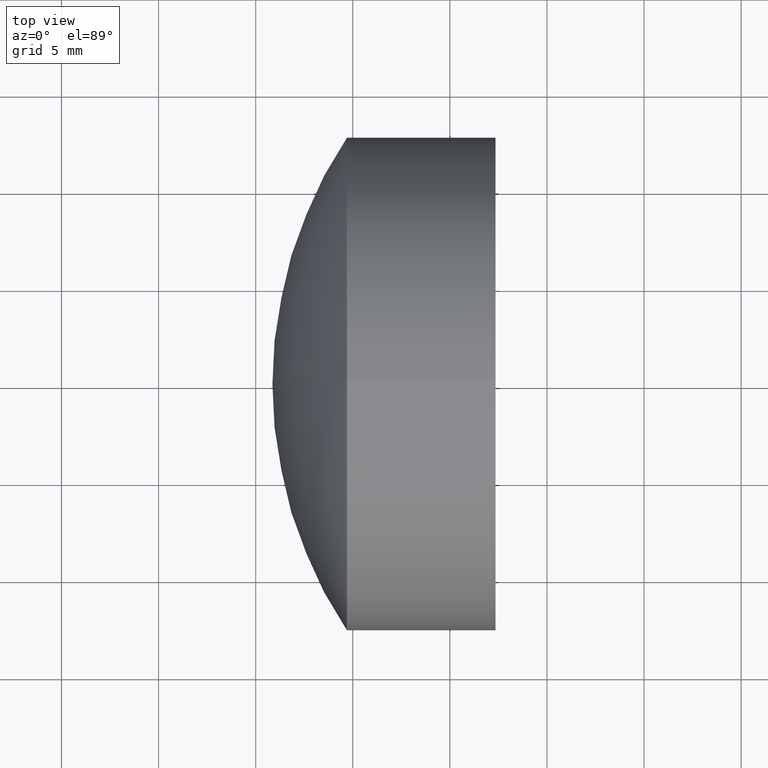
[diagram: clean part render]
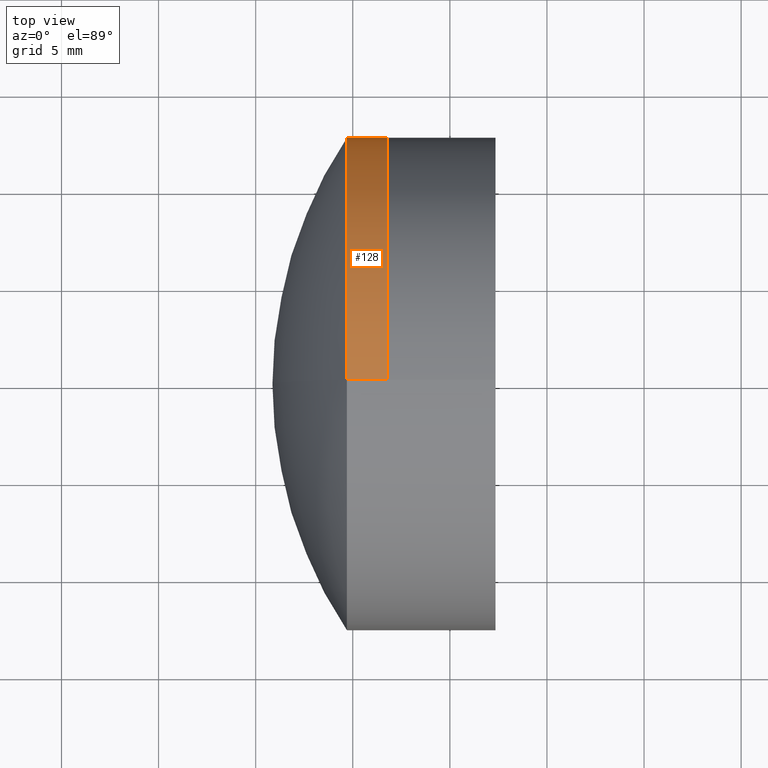
[diagram: same view with one face highlighted and labeled with its STEP entity id]
A machine part, top view. The second image highlights one B-rep face of the part: STEP entity #128.
In plain terms, the highlighted cylindrical surface (partial cylindrical patch) has radius 12.7 mm, axis along (-1, -0, -0).
Its self-contained STEP definition (entity closure, byte-faithful):
#2 = DIRECTION ( 'NONE',  ( -1.000000000000000000, -0.0000000000000000000, -0.0000000000000000000 ) ) ;
#9 = CARTESIAN_POINT ( 'NONE',  ( 36.76664125472041200, 1.555301434917138400E-015, -12.69999999999999900 ) ) ;
#20 = VERTEX_POINT ( 'NONE', #9 ) ;
#35 = CARTESIAN_POINT ( 'NONE',  ( 36.76664125472041200, 0.0000000000000000000, 0.0000000000000000000 ) ) ;
#36 = FACE_OUTER_BOUND ( 'NONE', #38, .T. ) ;
#38 = EDGE_LOOP ( 'NONE', ( #96, #147, #52, #42 ) ) ;
#42 = ORIENTED_EDGE ( 'NONE', *, *, #51, .F. ) ;
#50 = CARTESIAN_POINT ( 'NONE',  ( 34.70027742184829100, 0.0000000000000000000, 12.69999999999997600 ) ) ;
#51 = EDGE_CURVE ( 'NONE', #292, #316, #347, .T. ) ;
#52 = ORIENTED_EDGE ( 'NONE', *, *, #76, .F. ) ;
#63 = CARTESIAN_POINT ( 'NONE',  ( 34.70027742184828400, 0.0000000000000000000, 0.0000000000000000000 ) ) ;
#65 = DIRECTION ( 'NONE',  ( 0.0000000000000000000, 0.0000000000000000000, 1.000000000000000000 ) ) ;
#76 = EDGE_CURVE ( 'NONE', #316, #196, #284, .T. ) ;
#86 = EDGE_CURVE ( 'NONE', #20, #196, #161, .T. ) ;
#91 = CARTESIAN_POINT ( 'NONE',  ( -0.8160621761658039000, 0.0000000000000000000, 12.69999999999999900 ) ) ;
#96 = ORIENTED_EDGE ( 'NONE', *, *, #105, .T. ) ;
#101 = VECTOR ( 'NONE', #127, 1000.000000000000000 ) ;
#105 = EDGE_CURVE ( 'NONE', #292, #20, #253, .T. ) ;
#116 = CARTESIAN_POINT ( 'NONE',  ( 34.70027742184829100, 1.555301434917135900E-015, -12.69999999999997600 ) ) ;
#127 = DIRECTION ( 'NONE',  ( -1.000000000000000000, -0.0000000000000000000, -0.0000000000000000000 ) ) ;
#128 = ADVANCED_FACE ( 'NONE', ( #36 ), #320, .T. ) ;
#145 = DIRECTION ( 'NONE',  ( -1.000000000000000000, -0.0000000000000000000, -0.0000000000000000000 ) ) ;
#147 = ORIENTED_EDGE ( 'NONE', *, *, #86, .T. ) ;
#150 = DIRECTION ( 'NONE',  ( -1.000000000000000000, -0.0000000000000000000, -0.0000000000000000000 ) ) ;
#156 = AXIS2_PLACEMENT_3D ( 'NONE', #63, #145, #302 ) ;
#161 = LINE ( 'NONE', #223, #101 ) ;
#194 = DIRECTION ( 'NONE',  ( 0.0000000000000000000, 0.0000000000000000000, 1.000000000000000000 ) ) ;
#196 = VERTEX_POINT ( 'NONE', #116 ) ;
#223 = CARTESIAN_POINT ( 'NONE',  ( -0.8160621761658039000, 1.555301434917138400E-015, -12.69999999999999900 ) ) ;
#225 = AXIS2_PLACEMENT_3D ( 'NONE', #35, #2, #65 ) ;
#231 = CARTESIAN_POINT ( 'NONE',  ( 36.76664125472041200, 0.0000000000000000000, 12.69999999999999900 ) ) ;
#253 = CIRCLE ( 'NONE', #225, 12.69999999999999900 ) ;
#277 = CARTESIAN_POINT ( 'NONE',  ( -0.8160621761658039000, 0.0000000000000000000, 0.0000000000000000000 ) ) ;
#280 = VECTOR ( 'NONE', #150, 1000.000000000000000 ) ;
#284 = CIRCLE ( 'NONE', #156, 12.69999999999999900 ) ;
#292 = VERTEX_POINT ( 'NONE', #231 ) ;
#302 = DIRECTION ( 'NONE',  ( 0.0000000000000000000, 0.0000000000000000000, 1.000000000000000000 ) ) ;
#304 = AXIS2_PLACEMENT_3D ( 'NONE', #277, #308, #194 ) ;
#308 = DIRECTION ( 'NONE',  ( -1.000000000000000000, -0.0000000000000000000, -0.0000000000000000000 ) ) ;
#316 = VERTEX_POINT ( 'NONE', #50 ) ;
#320 = CYLINDRICAL_SURFACE ( 'NONE', #304, 12.69999999999999900 ) ;
#347 = LINE ( 'NONE', #91, #280 ) ;